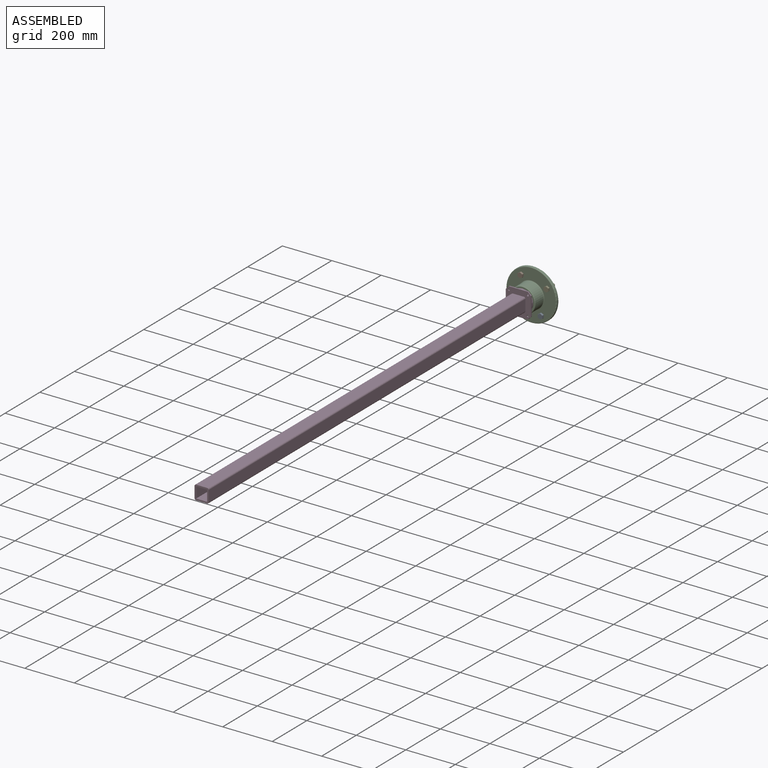
[diagram: assembled view]
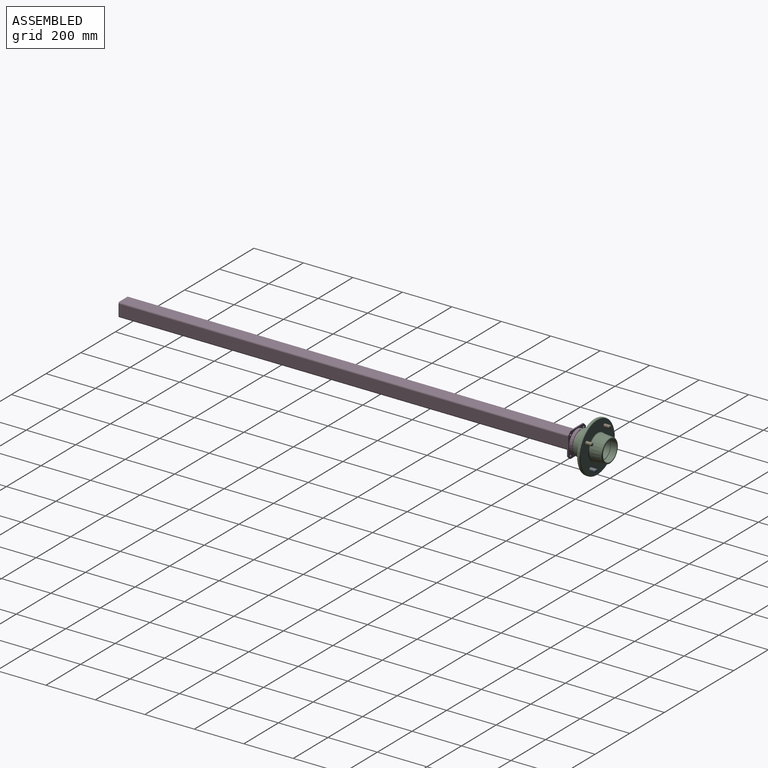
[diagram: assembled view, second angle]
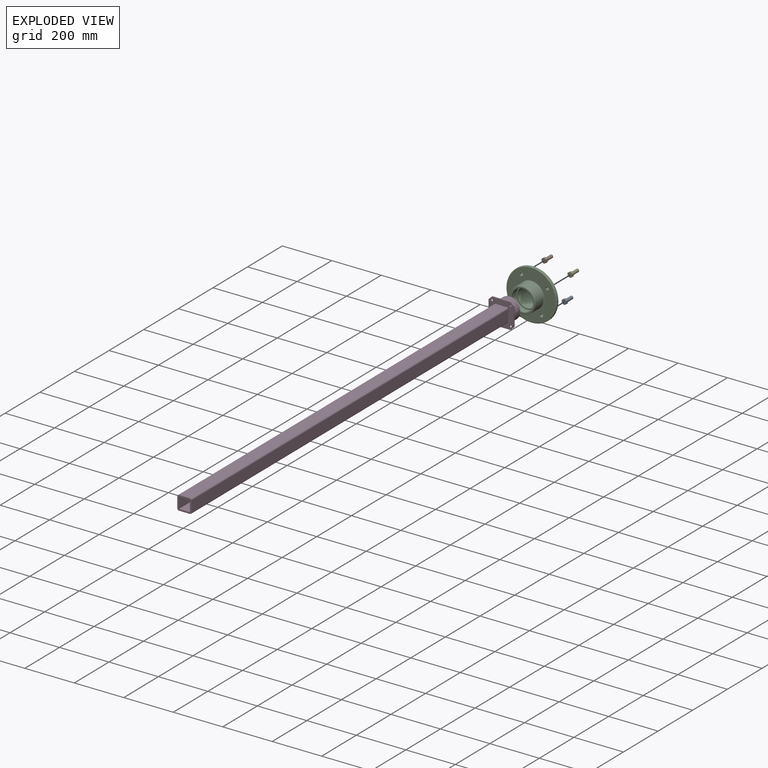
[diagram: exploded view]
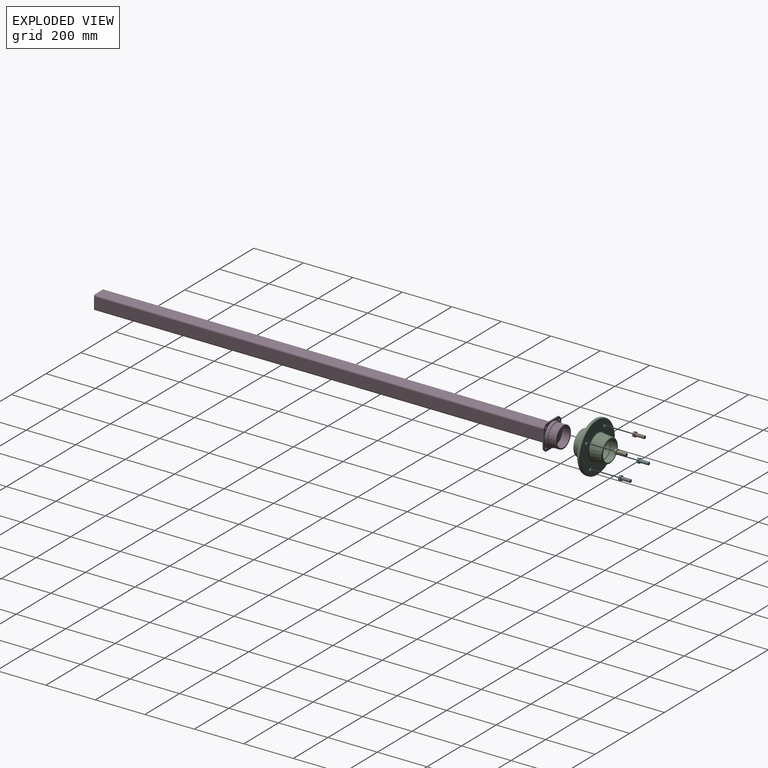
[diagram: exploded view, second angle]
ASSEMBLY  parts=6 mates=5
PART A: 17 faces, bbox 21.6x46.4x19.2 mm
  f0: cylinder r=6.35mm len=36.07mm, axis (0,-1,0), area 1439mm2, adj f9,f16
  f1: plane 8.64x8.64mm, normal (0,1,0), area 58.6mm2, adj f16
  f2: plane 8.26x8.2mm, normal (-0.86,0,0.51), area 78.7mm2, adj f8,f9,f10,f15
  f3: plane 8.31x8.26mm, normal (-0.87,0,-0.49), area 78.7mm2, adj f8,f9,f10,f11
  f4: plane 9.53x8.26mm, normal (-0.01,0,-1), area 78.7mm2, adj f8,f9,f11,f12
  f5: plane 8.26x8.2mm, normal (0.86,0,-0.51), area 78.7mm2, adj f8,f9,f12,f13
  f6: plane 8.31x8.26mm, normal (0.87,0,0.49), area 78.7mm2, adj f8,f9,f13,f14
  f7: plane 9.53x8.26mm, normal (0.01,0,1), area 78.7mm2, adj f8,f9,f14,f15
  f8: plane 21.6x19.16mm, normal (0,-1,0), area 313.8mm2, adj f2,f3,f4,f5,f6,f7,f10,f11
  f9: plane 21.6x19.16mm, normal (0,1,0), area 187.1mm2, adj f0,f2,f3,f4,f5,f6,f7,f10
  f10: cylinder r=1.27mm len=8.26mm, axis (0,1,0), area 11mm2, adj f2,f3,f8,f9
  f11: cylinder r=1.27mm len=8.26mm, axis (0,1,0), area 11mm2, adj f3,f4,f8,f9
  f12: cylinder r=1.27mm len=8.26mm, axis (0,1,0), area 11mm2, adj f4,f5,f8,f9
  f13: cylinder r=1.27mm len=8.26mm, axis (0,1,0), area 11mm2, adj f5,f6,f8,f9
  f14: cylinder r=1.27mm len=8.26mm, axis (0,1,0), area 11mm2, adj f6,f7,f8,f9
  f15: cylinder r=1.27mm len=8.26mm, axis (0,1,0), area 11mm2, adj f2,f7,f8,f9
  f16: cone r=6.35mm half-angle=45deg, axis (0,-1,0), area 96.3mm2, adj f0,f1
PART B: 17 faces, bbox 21.6x46.4x19.2 mm
  f0: cylinder r=6.35mm len=36.07mm, axis (0,-1,0), area 1439mm2, adj f9,f16
  f1: plane 8.64x8.64mm, normal (0,1,0), area 58.6mm2, adj f16
  f2: plane 8.26x8.2mm, normal (-0.86,0,0.51), area 78.7mm2, adj f8,f9,f10,f15
  f3: plane 8.31x8.26mm, normal (-0.87,0,-0.49), area 78.7mm2, adj f8,f9,f10,f11
  f4: plane 9.53x8.26mm, normal (-0.01,0,-1), area 78.7mm2, adj f8,f9,f11,f12
  f5: plane 8.26x8.2mm, normal (0.86,0,-0.51), area 78.7mm2, adj f8,f9,f12,f13
  f6: plane 8.31x8.26mm, normal (0.87,0,0.49), area 78.7mm2, adj f8,f9,f13,f14
  f7: plane 9.53x8.26mm, normal (0.01,0,1), area 78.7mm2, adj f8,f9,f14,f15
  f8: plane 21.6x19.16mm, normal (0,-1,0), area 313.8mm2, adj f2,f3,f4,f5,f6,f7,f10,f11
  f9: plane 21.6x19.16mm, normal (0,1,0), area 187.1mm2, adj f0,f2,f3,f4,f5,f6,f7,f10
  f10: cylinder r=1.27mm len=8.26mm, axis (0,1,0), area 11mm2, adj f2,f3,f8,f9
  f11: cylinder r=1.27mm len=8.26mm, axis (0,1,0), area 11mm2, adj f3,f4,f8,f9
  f12: cylinder r=1.27mm len=8.26mm, axis (0,1,0), area 11mm2, adj f4,f5,f8,f9
  f13: cylinder r=1.27mm len=8.26mm, axis (0,1,0), area 11mm2, adj f5,f6,f8,f9
  f14: cylinder r=1.27mm len=8.26mm, axis (0,1,0), area 11mm2, adj f6,f7,f8,f9
  f15: cylinder r=1.27mm len=8.26mm, axis (0,1,0), area 11mm2, adj f2,f7,f8,f9
  f16: cone r=6.35mm half-angle=45deg, axis (0,-1,0), area 96.3mm2, adj f0,f1
PART C: 22 faces, bbox 219.9x114.3x219.9 mm
  f0: cylinder r=38.1mm len=76.2mm, axis (0,-1,0), area 15201.2mm2, adj f14,f20
  f1: plane 198.12x198.12mm, normal (0,1,0), area 21454.1mm2, adj f9,f10,f16,f17,f18,f19
  f2: cylinder r=101.6mm len=203.2mm, axis (0,-1,0), area 4864.4mm2, adj f10,f11
  f3: plane 198.12x198.12mm, normal (0,-1,0), area 21383.1mm2, adj f11,f12,f16,f17,f18,f19
  f4: cylinder r=50.8mm len=101.6mm, axis (0,-1,0), area 14593.2mm2, adj f12,f13
  f5: plane 96.52x96.52mm, normal (0,-1,0), area 1459.3mm2, adj f13,f21
  f6: plane 88.06x88.06mm, normal (0,1,0), area 901.2mm2, adj f8,f15
  f7: cone r=50.8mm half-angle=5deg, axis (0,-1,0), area 14143.8mm2, adj f8,f9
  f8: torus R=44.03mm, axis (0,-1,0), area 1079.4mm2, adj f6,f7
  f9: torus R=53.13mm, axis (0,1,0), area 1220.8mm2, adj f1,f7
  f10: torus R=99.06mm, axis (0,1,0), area 2523.9mm2, adj f1,f2
  f11: torus R=99.06mm, axis (0,-1,0), area 2523.9mm2, adj f2,f3
  f12: torus R=53.34mm, axis (0,-1,0), area 1296.6mm2, adj f3,f4
  f13: torus R=48.26mm, axis (0,1,0), area 1250.4mm2, adj f4,f5
  f14: plane 81.28x81.28mm, normal (0,1,0), area 628.3mm2, adj f0,f15
  f15: cylinder r=40.64mm len=81.28mm, axis (0,1,0), area 6485.9mm2, adj f6,f14
  f16: cylinder r=6.35mm len=12.7mm, axis (0,-1,0), area 506.7mm2, adj f1,f3
  f17: cylinder r=6.35mm len=12.7mm, axis (0,-1,0), area 506.7mm2, adj f1,f3
  f18: cylinder r=6.35mm len=12.7mm, axis (0,-1,0), area 506.7mm2, adj f1,f3
  f19: cylinder r=6.35mm len=12.7mm, axis (0,-1,0), area 506.7mm2, adj f1,f3
  f20: plane 86.36x86.36mm, normal (0,-1,0), area 1297.2mm2, adj f0,f21
  f21: cylinder r=43.18mm len=86.36mm, axis (0,-1,0), area 6891.2mm2, adj f5,f20
PART D: 34 faces, bbox 101.6x1878.3x101.6 mm
  f0: plane 101.6x101.6mm, normal (0,-1,0), area 6554.4mm2, adj f7,f8,f9,f10,f12,f13,f14,f15
  f1: cylinder r=43.18mm len=86.36mm, axis (0,1,0), area 8614mm2, adj f3,f5
  f2: cylinder r=38.1mm len=76.2mm, axis (0,1,0), area 7600.6mm2, adj f3,f4
  f3: plane 86.36x86.36mm, normal (0,1,0), area 1297.2mm2, adj f1,f2
  f4: plane 76.2x76.2mm, normal (0,1,0), area 4560.4mm2, adj f2
  f5: plane 91.44x91.44mm, normal (0,1,0), area 709.4mm2, adj f1,f6
  f6: cylinder r=45.72mm len=91.44mm, axis (0,1,0), area 3648.3mm2, adj f5,f11
  f7: plane 76.2x5.08mm, normal (1,0,0), area 387.1mm2, adj f0,f11,f18,f19
  f8: plane 76.2x5.08mm, normal (0,0,1), area 387.1mm2, adj f0,f11,f17,f18
  f9: plane 76.2x5.08mm, normal (-1,0,0), area 387.1mm2, adj f0,f11,f16,f17
  f10: plane 76.2x5.08mm, normal (0,0,-1), area 387.1mm2, adj f0,f11,f16,f19
  f11: plane 101.6x101.6mm, normal (0,1,0), area 3219mm2, adj f6,f7,f8,f9,f10,f12,f13,f14
  f12: cylinder r=4.13mm len=8.26mm, axis (0,-1,0), area 131.7mm2, adj f0,f11
  f13: cylinder r=4.13mm len=8.26mm, axis (0,-1,0), area 131.7mm2, adj f0,f11
  f14: cylinder r=4.13mm len=8.26mm, axis (0,-1,0), area 131.7mm2, adj f0,f11
  f15: cylinder r=4.13mm len=8.26mm, axis (0,-1,0), area 131.7mm2, adj f0,f11
  f16: plane 12.7x12.7mm, normal (-0.71,0,-0.71), area 91.2mm2, adj f0,f9,f10,f11
  f17: plane 12.7x12.7mm, normal (-0.71,0,0.71), area 91.2mm2, adj f0,f8,f9,f11
  f18: plane 12.7x12.7mm, normal (0.71,0,0.71), area 91.2mm2, adj f0,f7,f8,f11
  f19: plane 12.7x12.7mm, normal (0.71,0,-0.71), area 91.2mm2, adj f0,f7,f10,f11
  f20: plane 1828.8x44.45mm, normal (0,0,1), area 81290.2mm2, adj f0,f28,f30,f33
  f21: plane 1828.8x44.45mm, normal (-1,0,0), area 81290.2mm2, adj f0,f28,f30,f31
  f22: plane 1828.8x44.45mm, normal (0,0,-1), area 81290.2mm2, adj f0,f28,f31,f32
  f23: plane 1828.8x44.45mm, normal (0,0,1), area 81290.2mm2, adj f24,f26,f28,f29
  f24: plane 1828.8x44.45mm, normal (1,0,0), area 81290.2mm2, adj f23,f25,f28,f29
  f25: plane 1828.8x44.45mm, normal (0,0,-1), area 81290.2mm2, adj f24,f26,f28,f29
  f26: plane 1828.8x44.45mm, normal (-1,0,0), area 81290.2mm2, adj f23,f25,f28,f29
  f27: plane 1828.8x44.45mm, normal (1,0,0), area 81290.2mm2, adj f0,f28,f32,f33
  f28: plane 57.15x57.15mm, normal (0,-1,0), area 1255.7mm2, adj f20,f21,f22,f23,f24,f25,f26,f27
  f29: plane 44.45x44.45mm, normal (0,-1,0), area 1975.8mm2, adj f23,f24,f25,f26
  f30: cylinder r=6.35mm len=1828.8mm, axis (0,-1,0), area 18241.5mm2, adj f0,f20,f21,f28
  f31: cylinder r=6.35mm len=1828.8mm, axis (0,1,0), area 18241.5mm2, adj f0,f21,f22,f28
  f32: cylinder r=6.35mm len=1828.8mm, axis (0,-1,0), area 18241.5mm2, adj f0,f22,f27,f28
  f33: cylinder r=6.35mm len=1828.8mm, axis (0,1,0), area 18241.5mm2, adj f0,f20,f27,f28
PART E: 17 faces, bbox 21.6x46.4x19.2 mm
  f0: cylinder r=6.35mm len=36.07mm, axis (0,-1,0), area 1439mm2, adj f9,f16
  f1: plane 8.64x8.64mm, normal (0,1,0), area 58.6mm2, adj f16
  f2: plane 8.26x8.2mm, normal (-0.86,0,0.51), area 78.7mm2, adj f8,f9,f10,f15
  f3: plane 8.31x8.26mm, normal (-0.87,0,-0.49), area 78.7mm2, adj f8,f9,f10,f11
  f4: plane 9.53x8.26mm, normal (-0.01,0,-1), area 78.7mm2, adj f8,f9,f11,f12
  f5: plane 8.26x8.2mm, normal (0.86,0,-0.51), area 78.7mm2, adj f8,f9,f12,f13
  f6: plane 8.31x8.26mm, normal (0.87,0,0.49), area 78.7mm2, adj f8,f9,f13,f14
  f7: plane 9.53x8.26mm, normal (0.01,0,1), area 78.7mm2, adj f8,f9,f14,f15
  f8: plane 21.6x19.16mm, normal (0,-1,0), area 313.8mm2, adj f2,f3,f4,f5,f6,f7,f10,f11
  f9: plane 21.6x19.16mm, normal (0,1,0), area 187.1mm2, adj f0,f2,f3,f4,f5,f6,f7,f10
  f10: cylinder r=1.27mm len=8.26mm, axis (0,1,0), area 11mm2, adj f2,f3,f8,f9
  f11: cylinder r=1.27mm len=8.26mm, axis (0,1,0), area 11mm2, adj f3,f4,f8,f9
  f12: cylinder r=1.27mm len=8.26mm, axis (0,1,0), area 11mm2, adj f4,f5,f8,f9
  f13: cylinder r=1.27mm len=8.26mm, axis (0,1,0), area 11mm2, adj f5,f6,f8,f9
  f14: cylinder r=1.27mm len=8.26mm, axis (0,1,0), area 11mm2, adj f6,f7,f8,f9
  f15: cylinder r=1.27mm len=8.26mm, axis (0,1,0), area 11mm2, adj f2,f7,f8,f9
  f16: cone r=6.35mm half-angle=45deg, axis (0,-1,0), area 96.3mm2, adj f0,f1
PART F: 17 faces, bbox 21.6x46.4x19.2 mm
  f0: cylinder r=6.35mm len=36.07mm, axis (0,-1,0), area 1439mm2, adj f9,f16
  f1: plane 8.64x8.64mm, normal (0,1,0), area 58.6mm2, adj f16
  f2: plane 8.26x8.2mm, normal (-0.86,0,0.51), area 78.7mm2, adj f8,f9,f10,f15
  f3: plane 8.31x8.26mm, normal (-0.87,0,-0.49), area 78.7mm2, adj f8,f9,f10,f11
  f4: plane 9.53x8.26mm, normal (-0.01,0,-1), area 78.7mm2, adj f8,f9,f11,f12
  f5: plane 8.26x8.2mm, normal (0.86,0,-0.51), area 78.7mm2, adj f8,f9,f12,f13
  f6: plane 8.31x8.26mm, normal (0.87,0,0.49), area 78.7mm2, adj f8,f9,f13,f14
  f7: plane 9.53x8.26mm, normal (0.01,0,1), area 78.7mm2, adj f8,f9,f14,f15
  f8: plane 21.6x19.16mm, normal (0,-1,0), area 313.8mm2, adj f2,f3,f4,f5,f6,f7,f10,f11
  f9: plane 21.6x19.16mm, normal (0,1,0), area 187.1mm2, adj f0,f2,f3,f4,f5,f6,f7,f10
  f10: cylinder r=1.27mm len=8.26mm, axis (0,1,0), area 11mm2, adj f2,f3,f8,f9
  f11: cylinder r=1.27mm len=8.26mm, axis (0,1,0), area 11mm2, adj f3,f4,f8,f9
  f12: cylinder r=1.27mm len=8.26mm, axis (0,1,0), area 11mm2, adj f4,f5,f8,f9
  f13: cylinder r=1.27mm len=8.26mm, axis (0,1,0), area 11mm2, adj f5,f6,f8,f9
  f14: cylinder r=1.27mm len=8.26mm, axis (0,1,0), area 11mm2, adj f6,f7,f8,f9
  f15: cylinder r=1.27mm len=8.26mm, axis (0,1,0), area 11mm2, adj f2,f7,f8,f9
  f16: cone r=6.35mm half-angle=45deg, axis (0,-1,0), area 96.3mm2, adj f0,f1
PLACE A rot(axis=(0,-1,0),32.3deg) t=(-467.59,438.57,-300.67)mm
PLACE B rot(axis=(0,-1,0),32.3deg) t=(-467.59,438.57,-300.67)mm
PLACE C rot(axis=(0,-1,0),32.3deg) t=(-467.59,438.57,-300.67)mm
PLACE D t=(-467.59,438.57,-300.67)mm fixed
PLACE E rot(axis=(0,-1,0),32.3deg) t=(-467.59,438.57,-300.67)mm
PLACE F rot(axis=(0,-1,0),32.3deg) t=(-467.59,438.57,-300.67)mm
MATE fastened E.f0 <-> C.f18  axis (0,1,0) through (-403.2,449.7,-259.92)mm
MATE revolute C.f21 <-> D.f1  axis (0,-1,0) through (-467.59,424.3,-300.67)mm
MATE fastened B.f0 <-> C.f17  axis (0,1,0) through (-508.34,449.7,-236.28)mm
MATE fastened A.f0 <-> C.f19  axis (0,-1,0) through (-426.84,449.7,-365.06)mm
MATE fastened F.f0 <-> C.f16  axis (0,-1,0) through (-531.98,449.7,-341.42)mm
